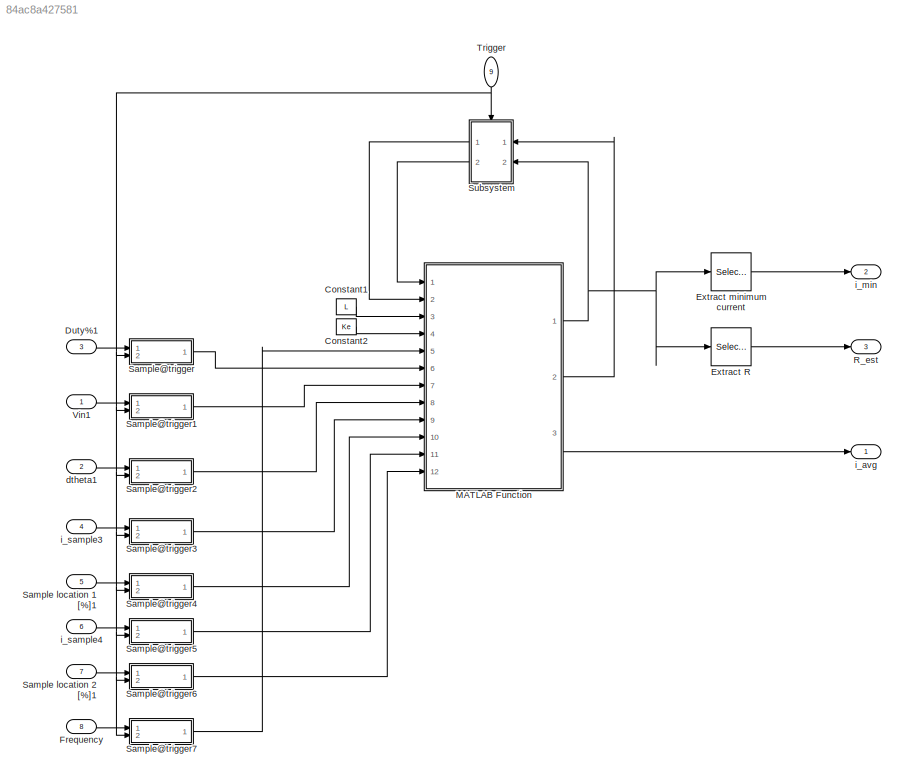
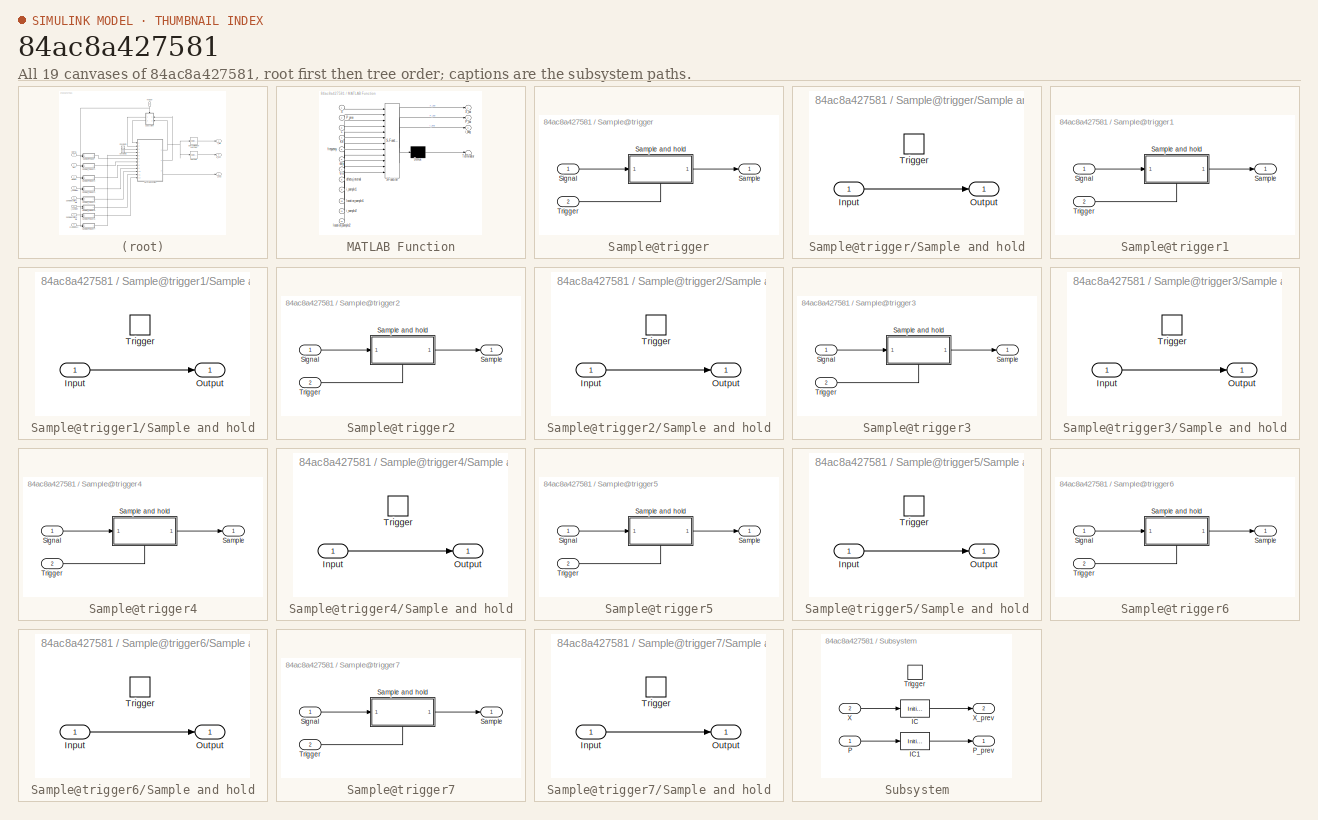
[diagram: thumbnail index - all 19 canvases of the model, root first then tree order]
MODEL slx_84ac8a427581
KIND model
CONFIG AbsTol = auto
CONFIG EnableMultiTasking = off
CONFIG FixedStep = auto
CONFIG InitFcn = Parameters_Model\nParameters_Simulation\nParameters_Estimators
CONFIG MaxStep = auto
CONFIG MinStep = auto
CONFIG PreLoadFcn = modelDir = fileparts(get_param(bdroot, 'FileName'));\naddpath(fullfile(modelDir,'../../Parameters'));\naddpath(fullfile(modelDir,'../../Estimation/Current-EKF'));\n\nParameters_Model\nParameters_Simulation\nParameters_Estimators
CONFIG RelTol = 1e-3
CONFIG SampleTimeConstraint = Unconstrained
CONFIG Solver = VariableStepAuto
CONFIG SolverName = VariableStepAuto
CONFIG StartTime = 0.0
CONFIG StopTime = 10.0
BLOCK [Constant] Constant1
  Value = L
BLOCK [Constant] Constant2
  Value = Ke
BLOCK [Inport] Duty%1
  IconDisplay = Port number
  OutDataTypeStr = double
  Port = 3
BLOCK [Selector] Extract R
  IndexOptions = Index vector (dialog)
  Indices = [2]
  InputPortWidth = 2
  OutputSizes = 1
  Ports = [1, 1]
BLOCK [Selector] Extract minimum current
  IndexOptions = Index vector (dialog)
  Indices = [1]
  InputPortWidth = 2
  OutputSizes = 1
  Ports = [1, 1]
BLOCK [Inport] Frequency
  IconDisplay = Port number
  OutDataTypeStr = double
  Port = 8
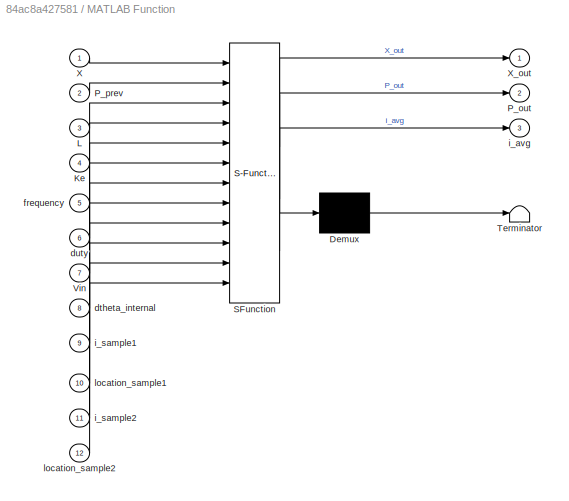
BLOCK [SubSystem] MATLAB Function
  ErrorFcn = Stateflow.Translate.translate
  PermitHierarchicalResolution = ExplicitOnly
  Ports = [12, 3]
  RequestExecContextInheritance = off
  SFBlockType = MATLAB Function
  TreatAsAtomicUnit = on
BLOCK [Demux] MATLAB Function/ Demux 
  Outputs = 1
  Ports = [1, 1]
BLOCK [S-Function] MATLAB Function/ SFunction 
  EnableBusSupport = on
  FunctionName = sf_sfun
  PortCounts = [12 4]
  Ports = [12, 4]
  SFcnIsStateOwnerBlock = off
  SFunctionDeploymentMode = off
  Tag = Stateflow S-Function 2
BLOCK [Terminator] MATLAB Function/ Terminator 
BLOCK [Inport] MATLAB Function/Ke
  IconDisplay = Port number
  Port = 4
BLOCK [Inport] MATLAB Function/L
  IconDisplay = Port number
  Port = 3
BLOCK [Outport] MATLAB Function/P_out
  IconDisplay = Port number
  Port = 2
  VectorParamsAs1DForOutWhenUnconnected = off
BLOCK [Inport] MATLAB Function/P_prev
  IconDisplay = Port number
  Port = 2
BLOCK [Inport] MATLAB Function/Vin
  IconDisplay = Port number
  Port = 7
BLOCK [Inport] MATLAB Function/X
  IconDisplay = Port number
BLOCK [Outport] MATLAB Function/X_out
  IconDisplay = Port number
  VectorParamsAs1DForOutWhenUnconnected = off
BLOCK [Inport] MATLAB Function/dtheta_internal
  IconDisplay = Port number
  Port = 8
BLOCK [Inport] MATLAB Function/duty
  IconDisplay = Port number
  Port = 6
BLOCK [Inport] MATLAB Function/frequency
  IconDisplay = Port number
  Port = 5
BLOCK [Outport] MATLAB Function/i_avg
  IconDisplay = Port number
  Port = 3
  VectorParamsAs1DForOutWhenUnconnected = off
BLOCK [Inport] MATLAB Function/i_sample1
  IconDisplay = Port number
  Port = 9
BLOCK [Inport] MATLAB Function/i_sample2
  IconDisplay = Port number
  Port = 11
BLOCK [Inport] MATLAB Function/location_sample1
  IconDisplay = Port number
  Port = 10
BLOCK [Inport] MATLAB Function/location_sample2
  IconDisplay = Port number
  Port = 12
BLOCK [Outport] R_est
  IconDisplay = Port number
  Port = 3
  VectorParamsAs1DForOutWhenUnconnected = off
BLOCK [Inport] Sample location 1 [%]1
  IconDisplay = Port number
  OutDataTypeStr = double
  Port = 5
BLOCK [Inport] Sample location 2 [%]1
  IconDisplay = Port number
  OutDataTypeStr = double
  Port = 7
BLOCK [SubSystem] Sample@trigger
  Ports = [2, 1]
  RequestExecContextInheritance = off
BLOCK [Outport] Sample@trigger/Sample
  IconDisplay = Port number
  VectorParamsAs1DForOutWhenUnconnected = off
BLOCK [SubSystem] Sample@trigger/Sample and hold
  Ports = [1, 1, 0, 1]
  RequestExecContextInheritance = off
BLOCK [Inport] Sample@trigger/Sample and hold/Input
  IconDisplay = Port number
BLOCK [Outport] Sample@trigger/Sample and hold/Output
  IconDisplay = Port number
  VectorParamsAs1DForOutWhenUnconnected = off
BLOCK [TriggerPort] Sample@trigger/Sample and hold/Trigger
  PortDimensions = 1
  Ports = []
  StatesWhenEnabling = held
  VariantControl = Variant
BLOCK [Inport] Sample@trigger/Signal
  IconDisplay = Port number
BLOCK [Inport] Sample@trigger/Trigger
  IconDisplay = Port number
  Port = 2
BLOCK [SubSystem] Sample@trigger1
  Ports = [2, 1]
  RequestExecContextInheritance = off
BLOCK [Outport] Sample@trigger1/Sample
  IconDisplay = Port number
  VectorParamsAs1DForOutWhenUnconnected = off
BLOCK [SubSystem] Sample@trigger1/Sample and hold
  Ports = [1, 1, 0, 1]
  RequestExecContextInheritance = off
BLOCK [Inport] Sample@trigger1/Sample and hold/Input
  IconDisplay = Port number
BLOCK [Outport] Sample@trigger1/Sample and hold/Output
  IconDisplay = Port number
  VectorParamsAs1DForOutWhenUnconnected = off
BLOCK [TriggerPort] Sample@trigger1/Sample and hold/Trigger
  PortDimensions = 1
  Ports = []
  StatesWhenEnabling = held
  VariantControl = Variant
BLOCK [Inport] Sample@trigger1/Signal
  IconDisplay = Port number
BLOCK [Inport] Sample@trigger1/Trigger
  IconDisplay = Port number
  Port = 2
BLOCK [SubSystem] Sample@trigger2
  Ports = [2, 1]
  RequestExecContextInheritance = off
BLOCK [Outport] Sample@trigger2/Sample
  IconDisplay = Port number
  VectorParamsAs1DForOutWhenUnconnected = off
BLOCK [SubSystem] Sample@trigger2/Sample and hold
  Ports = [1, 1, 0, 1]
  RequestExecContextInheritance = off
BLOCK [Inport] Sample@trigger2/Sample and hold/Input
  IconDisplay = Port number
BLOCK [Outport] Sample@trigger2/Sample and hold/Output
  IconDisplay = Port number
  VectorParamsAs1DForOutWhenUnconnected = off
BLOCK [TriggerPort] Sample@trigger2/Sample and hold/Trigger
  PortDimensions = 1
  Ports = []
  StatesWhenEnabling = held
  VariantControl = Variant
BLOCK [Inport] Sample@trigger2/Signal
  IconDisplay = Port number
BLOCK [Inport] Sample@trigger2/Trigger
  IconDisplay = Port number
  Port = 2
BLOCK [SubSystem] Sample@trigger3
  Ports = [2, 1]
  RequestExecContextInheritance = off
BLOCK [Outport] Sample@trigger3/Sample
  IconDisplay = Port number
  VectorParamsAs1DForOutWhenUnconnected = off
BLOCK [SubSystem] Sample@trigger3/Sample and hold
  Ports = [1, 1, 0, 1]
  RequestExecContextInheritance = off
BLOCK [Inport] Sample@trigger3/Sample and hold/Input
  IconDisplay = Port number
BLOCK [Outport] Sample@trigger3/Sample and hold/Output
  IconDisplay = Port number
  VectorParamsAs1DForOutWhenUnconnected = off
BLOCK [TriggerPort] Sample@trigger3/Sample and hold/Trigger
  PortDimensions = 1
  Ports = []
  StatesWhenEnabling = held
  VariantControl = Variant
BLOCK [Inport] Sample@trigger3/Signal
  IconDisplay = Port number
BLOCK [Inport] Sample@trigger3/Trigger
  IconDisplay = Port number
  Port = 2
BLOCK [SubSystem] Sample@trigger4
  Ports = [2, 1]
  RequestExecContextInheritance = off
BLOCK [Outport] Sample@trigger4/Sample
  IconDisplay = Port number
  VectorParamsAs1DForOutWhenUnconnected = off
BLOCK [SubSystem] Sample@trigger4/Sample and hold
  Ports = [1, 1, 0, 1]
  RequestExecContextInheritance = off
BLOCK [Inport] Sample@trigger4/Sample and hold/Input
  IconDisplay = Port number
BLOCK [Outport] Sample@trigger4/Sample and hold/Output
  IconDisplay = Port number
  VectorParamsAs1DForOutWhenUnconnected = off
BLOCK [TriggerPort] Sample@trigger4/Sample and hold/Trigger
  PortDimensions = 1
  Ports = []
  StatesWhenEnabling = held
  VariantControl = Variant
BLOCK [Inport] Sample@trigger4/Signal
  IconDisplay = Port number
BLOCK [Inport] Sample@trigger4/Trigger
  IconDisplay = Port number
  Port = 2
BLOCK [SubSystem] Sample@trigger5
  Ports = [2, 1]
  RequestExecContextInheritance = off
BLOCK [Outport] Sample@trigger5/Sample
  IconDisplay = Port number
  VectorParamsAs1DForOutWhenUnconnected = off
BLOCK [SubSystem] Sample@trigger5/Sample and hold
  Ports = [1, 1, 0, 1]
  RequestExecContextInheritance = off
BLOCK [Inport] Sample@trigger5/Sample and hold/Input
  IconDisplay = Port number
BLOCK [Outport] Sample@trigger5/Sample and hold/Output
  IconDisplay = Port number
  VectorParamsAs1DForOutWhenUnconnected = off
BLOCK [TriggerPort] Sample@trigger5/Sample and hold/Trigger
  PortDimensions = 1
  Ports = []
  StatesWhenEnabling = held
  VariantControl = Variant
BLOCK [Inport] Sample@trigger5/Signal
  IconDisplay = Port number
BLOCK [Inport] Sample@trigger5/Trigger
  IconDisplay = Port number
  Port = 2
BLOCK [SubSystem] Sample@trigger6
  Ports = [2, 1]
  RequestExecContextInheritance = off
BLOCK [Outport] Sample@trigger6/Sample
  IconDisplay = Port number
  VectorParamsAs1DForOutWhenUnconnected = off
BLOCK [SubSystem] Sample@trigger6/Sample and hold
  Ports = [1, 1, 0, 1]
  RequestExecContextInheritance = off
BLOCK [Inport] Sample@trigger6/Sample and hold/Input
  IconDisplay = Port number
BLOCK [Outport] Sample@trigger6/Sample and hold/Output
  IconDisplay = Port number
  VectorParamsAs1DForOutWhenUnconnected = off
BLOCK [TriggerPort] Sample@trigger6/Sample and hold/Trigger
  PortDimensions = 1
  Ports = []
  StatesWhenEnabling = held
  VariantControl = Variant
BLOCK [Inport] Sample@trigger6/Signal
  IconDisplay = Port number
BLOCK [Inport] Sample@trigger6/Trigger
  IconDisplay = Port number
  Port = 2
BLOCK [SubSystem] Sample@trigger7
  Ports = [2, 1]
  RequestExecContextInheritance = off
BLOCK [Outport] Sample@trigger7/Sample
  IconDisplay = Port number
  VectorParamsAs1DForOutWhenUnconnected = off
BLOCK [SubSystem] Sample@trigger7/Sample and hold
  Ports = [1, 1, 0, 1]
  RequestExecContextInheritance = off
BLOCK [Inport] Sample@trigger7/Sample and hold/Input
  IconDisplay = Port number
BLOCK [Outport] Sample@trigger7/Sample and hold/Output
  IconDisplay = Port number
  VectorParamsAs1DForOutWhenUnconnected = off
BLOCK [TriggerPort] Sample@trigger7/Sample and hold/Trigger
  PortDimensions = 1
  Ports = []
  StatesWhenEnabling = held
  VariantControl = Variant
BLOCK [Inport] Sample@trigger7/Signal
  IconDisplay = Port number
BLOCK [Inport] Sample@trigger7/Trigger
  IconDisplay = Port number
  Port = 2
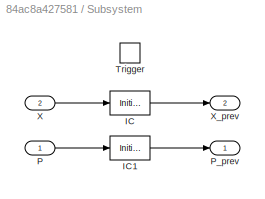
BLOCK [SubSystem] Subsystem
  Ports = [2, 2, 0, 1]
  RequestExecContextInheritance = off
BLOCK [InitialCondition] Subsystem/IC
  Value = X_init
BLOCK [InitialCondition] Subsystem/IC1
  Value = P_init
BLOCK [Inport] Subsystem/P
  IconDisplay = Port number
  LatchByDelayingOutsideSignal = on
BLOCK [Outport] Subsystem/P_prev
  IconDisplay = Port number
  VectorParamsAs1DForOutWhenUnconnected = off
BLOCK [TriggerPort] Subsystem/Trigger
  PortDimensions = 1
  Ports = []
  StatesWhenEnabling = held
  VariantControl = Variant
BLOCK [Inport] Subsystem/X
  IconDisplay = Port number
  LatchByDelayingOutsideSignal = on
  Port = 2
BLOCK [Outport] Subsystem/X_prev
  IconDisplay = Port number
  Port = 2
  VectorParamsAs1DForOutWhenUnconnected = off
BLOCK [Inport] Trigger
  IconDisplay = Port number
  OutDataTypeStr = boolean
  Port = 9
BLOCK [Inport] Vin1
  IconDisplay = Port number
  OutDataTypeStr = double
BLOCK [Inport] dtheta1
  IconDisplay = Port number
  OutDataTypeStr = double
  Port = 2
BLOCK [Outport] i_avg
  IconDisplay = Port number
  VectorParamsAs1DForOutWhenUnconnected = off
BLOCK [Outport] i_min
  IconDisplay = Port number
  Port = 2
  VectorParamsAs1DForOutWhenUnconnected = off
BLOCK [Inport] i_sample3
  IconDisplay = Port number
  OutDataTypeStr = double
  Port = 4
BLOCK [Inport] i_sample4
  IconDisplay = Port number
  OutDataTypeStr = double
  Port = 6
LINE Constant1:1 -> MATLAB Function:3
LINE Constant2:1 -> MATLAB Function:4
LINE Duty%1:1 -> Sample@trigger:1
LINE Extract R:1 -> R_est:1
LINE Extract minimum current:1 -> i_min:1
LINE Frequency:1 -> Sample@trigger7:1
NET MATLAB Function:1 -> Extract R:1, Extract minimum current:1, Subsystem:2
LINE MATLAB Function:2 -> Subsystem:1
LINE MATLAB Function:3 -> i_avg:1
LINE Sample location 1 [%]1:1 -> Sample@trigger4:1
LINE Sample location 2 [%]1:1 -> Sample@trigger6:1
LINE Sample@trigger/Sample and hold/Input:1 -> Sample@trigger/Sample and hold/Output:1
LINE Sample@trigger/Sample and hold:1 -> Sample@trigger/Sample:1
LINE Sample@trigger/Signal:1 -> Sample@trigger/Sample and hold:1
LINE Sample@trigger/Trigger:1 -> Sample@trigger/Sample and hold:trigger
LINE Sample@trigger1/Sample and hold/Input:1 -> Sample@trigger1/Sample and hold/Output:1
LINE Sample@trigger1/Sample and hold:1 -> Sample@trigger1/Sample:1
LINE Sample@trigger1/Signal:1 -> Sample@trigger1/Sample and hold:1
LINE Sample@trigger1/Trigger:1 -> Sample@trigger1/Sample and hold:trigger
LINE Sample@trigger1:1 -> MATLAB Function:7
LINE Sample@trigger2/Sample and hold/Input:1 -> Sample@trigger2/Sample and hold/Output:1
LINE Sample@trigger2/Sample and hold:1 -> Sample@trigger2/Sample:1
LINE Sample@trigger2/Signal:1 -> Sample@trigger2/Sample and hold:1
LINE Sample@trigger2/Trigger:1 -> Sample@trigger2/Sample and hold:trigger
LINE Sample@trigger2:1 -> MATLAB Function:8
LINE Sample@trigger3/Sample and hold/Input:1 -> Sample@trigger3/Sample and hold/Output:1
LINE Sample@trigger3/Sample and hold:1 -> Sample@trigger3/Sample:1
LINE Sample@trigger3/Signal:1 -> Sample@trigger3/Sample and hold:1
LINE Sample@trigger3/Trigger:1 -> Sample@trigger3/Sample and hold:trigger
LINE Sample@trigger3:1 -> MATLAB Function:9
LINE Sample@trigger4/Sample and hold/Input:1 -> Sample@trigger4/Sample and hold/Output:1
LINE Sample@trigger4/Sample and hold:1 -> Sample@trigger4/Sample:1
LINE Sample@trigger4/Signal:1 -> Sample@trigger4/Sample and hold:1
LINE Sample@trigger4/Trigger:1 -> Sample@trigger4/Sample and hold:trigger
LINE Sample@trigger4:1 -> MATLAB Function:10
LINE Sample@trigger5/Sample and hold/Input:1 -> Sample@trigger5/Sample and hold/Output:1
LINE Sample@trigger5/Sample and hold:1 -> Sample@trigger5/Sample:1
LINE Sample@trigger5/Signal:1 -> Sample@trigger5/Sample and hold:1
LINE Sample@trigger5/Trigger:1 -> Sample@trigger5/Sample and hold:trigger
LINE Sample@trigger5:1 -> MATLAB Function:11
LINE Sample@trigger6/Sample and hold/Input:1 -> Sample@trigger6/Sample and hold/Output:1
LINE Sample@trigger6/Sample and hold:1 -> Sample@trigger6/Sample:1
LINE Sample@trigger6/Signal:1 -> Sample@trigger6/Sample and hold:1
LINE Sample@trigger6/Trigger:1 -> Sample@trigger6/Sample and hold:trigger
LINE Sample@trigger6:1 -> MATLAB Function:12
LINE Sample@trigger7/Sample and hold/Input:1 -> Sample@trigger7/Sample and hold/Output:1
LINE Sample@trigger7/Sample and hold:1 -> Sample@trigger7/Sample:1
LINE Sample@trigger7/Signal:1 -> Sample@trigger7/Sample and hold:1
LINE Sample@trigger7/Trigger:1 -> Sample@trigger7/Sample and hold:trigger
LINE Sample@trigger7:1 -> MATLAB Function:5
LINE Sample@trigger:1 -> MATLAB Function:6
LINE Subsystem/IC1:1 -> Subsystem/P_prev:1
LINE Subsystem/IC:1 -> Subsystem/X_prev:1
LINE Subsystem/P:1 -> Subsystem/IC1:1
LINE Subsystem/X:1 -> Subsystem/IC:1
LINE Subsystem:1 -> MATLAB Function:2
LINE Subsystem:2 -> MATLAB Function:1
NET Trigger:1 -> Sample@trigger1:2, Sample@trigger2:2, Sample@trigger3:2, Sample@trigger4:2, Sample@trigger5:2, Sample@trigger6:2, Sample@trigger7:2, Sample@trigger:2, Subsystem:trigger
LINE Vin1:1 -> Sample@trigger1:1
LINE dtheta1:1 -> Sample@trigger2:1
LINE i_sample3:1 -> Sample@trigger3:1
LINE i_sample4:1 -> Sample@trigger5:1
note: NET lines group one-source signal fan-out (src -> all destinations, sorted); 1:1 wires keep LINE
CHART MATLAB Function states=1 transitions=1
  STATE_LABEL 'eML_blk_kernel()'
  STATE_LABEL 'SCRIPT:\nfunction [X_out, P_out, i_avg] = MotorCurrentEKF_(X, P_prev, ...\n    L, Ke, ... % constants/parameters\n    frequency, duty, Vin, dtheta_internal, ... % inputs (u)\n    i_sample1, location_sample1, ...\n    i_sample2, location_sample2)  % measurements (z)\n\n%     [X_out, P_out] = MotorCurrentEKF(X, P_prev, ...\n%         R, L, Ke, ... % constants/parameters\n%         frequency, duty, Vin, dthet...<+356ch>'
